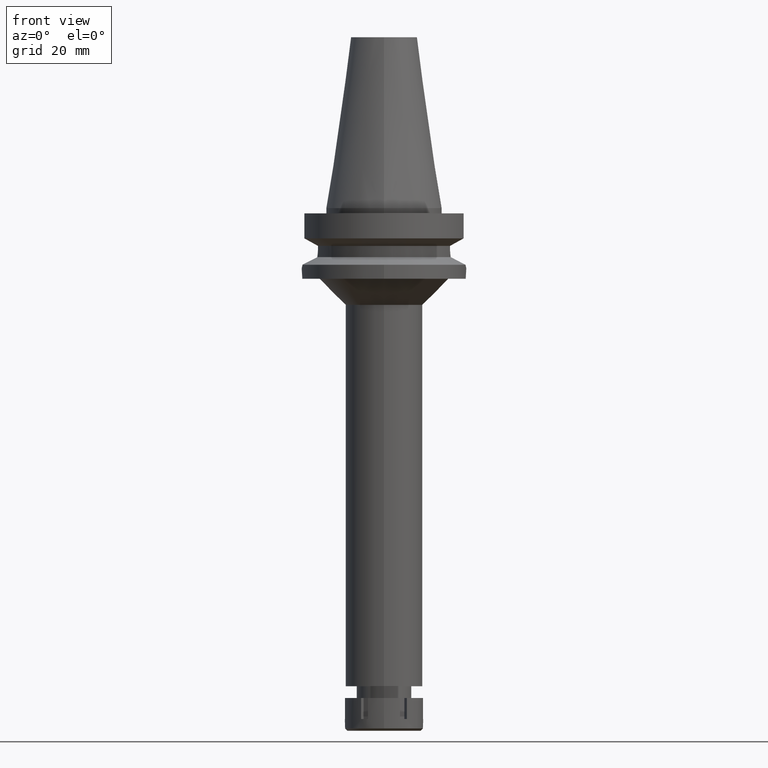
[diagram: clean part render]
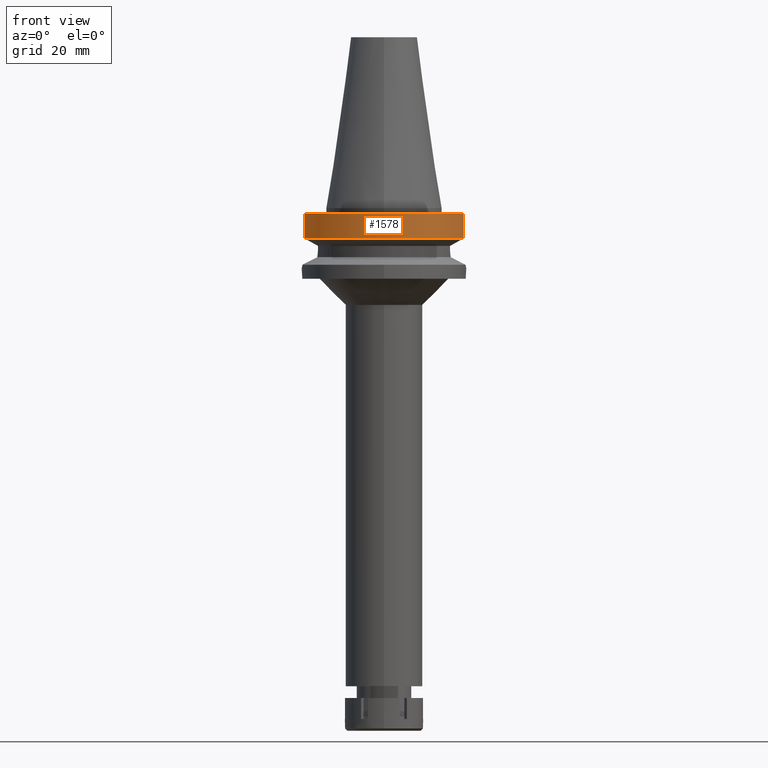
[diagram: same view with one face highlighted and labeled with its STEP entity id]
A machine part, front view. The second image highlights one B-rep face of the part: STEP entity #1578.
In plain terms, the highlighted cylindrical surface (partial cylindrical patch) has radius 31.5 mm, axis along (0, 0, -1).
Its self-contained STEP definition (entity closure, byte-faithful):
#2 = VECTOR ( 'NONE', #2903, 1000.000000000000227 ) ;
#103 = DIRECTION ( 'NONE',  ( 0.0000000000000000000, 0.0000000000000000000, -1.000000000000000000 ) ) ;
#122 = DIRECTION ( 'NONE',  ( 0.0000000000000000000, 0.0000000000000000000, 1.000000000000000000 ) ) ;
#154 = EDGE_CURVE ( 'NONE', #1198, #2717, #1292, .T. ) ;
#159 = EDGE_CURVE ( 'NONE', #1198, #1479, #2294, .T. ) ;
#213 = CYLINDRICAL_SURFACE ( 'NONE', #1302, 31.50000000000000000 ) ;
#471 = AXIS2_PLACEMENT_3D ( 'NONE', #2114, #103, #3231 ) ;
#721 = DIRECTION ( 'NONE',  ( 0.0000000000000000000, -1.000000000000000000, 0.0000000000000000000 ) ) ;
#731 = VECTOR ( 'NONE', #3516, 999.9999999999998863 ) ;
#732 = CARTESIAN_POINT ( 'NONE',  ( 30.45402272279000044, -8.050000000000000711, -2.000000000000000000 ) ) ;
#773 = ORIENTED_EDGE ( 'NONE', *, *, #159, .T. ) ;
#778 = EDGE_CURVE ( 'NONE', #1074, #1479, #2192, .T. ) ;
#964 = CARTESIAN_POINT ( 'NONE',  ( -30.45402291358000113, -8.049999278195999253, -11.56551215380000031 ) ) ;
#1074 = VERTEX_POINT ( 'NONE', #732 ) ;
#1198 = VERTEX_POINT ( 'NONE', #2532 ) ;
#1292 = LINE ( 'NONE', #964, #2 ) ;
#1302 = AXIS2_PLACEMENT_3D ( 'NONE', #1391, #3596, #3063 ) ;
#1391 = CARTESIAN_POINT ( 'NONE',  ( 0.0000000000000000000, 2.183790172239999946E-14, 78.32000000000000739 ) ) ;
#1422 = AXIS2_PLACEMENT_3D ( 'NONE', #2364, #122, #721 ) ;
#1437 = EDGE_CURVE ( 'NONE', #1074, #2717, #2512, .T. ) ;
#1479 = VERTEX_POINT ( 'NONE', #1874 ) ;
#1514 = ORIENTED_EDGE ( 'NONE', *, *, #1437, .T. ) ;
#1578 = ADVANCED_FACE ( 'NONE', ( #3581 ), #213, .T. ) ;
#1621 = ORIENTED_EDGE ( 'NONE', *, *, #778, .F. ) ;
#1732 = CARTESIAN_POINT ( 'NONE',  ( -30.45402272279000044, -8.050000000000000711, -2.000000000000000000 ) ) ;
#1874 = CARTESIAN_POINT ( 'NONE',  ( 30.45402272279000044, -8.049999999999000622, -11.56550565266999975 ) ) ;
#2114 = CARTESIAN_POINT ( 'NONE',  ( 0.0000000000000000000, 2.183790172239999946E-14, -2.000000000000000000 ) ) ;
#2192 = LINE ( 'NONE', #3311, #731 ) ;
#2287 = ORIENTED_EDGE ( 'NONE', *, *, #154, .F. ) ;
#2294 = CIRCLE ( 'NONE', #1422, 31.50000000000000000 ) ;
#2364 = CARTESIAN_POINT ( 'NONE',  ( 0.0000000000000000000, 1.065333950388000029E-14, -11.56550565266999975 ) ) ;
#2512 = CIRCLE ( 'NONE', #471, 31.50000000000000000 ) ;
#2532 = CARTESIAN_POINT ( 'NONE',  ( -30.45402291358000113, -8.049999278195999253, -11.56551215380000031 ) ) ;
#2545 = EDGE_LOOP ( 'NONE', ( #2287, #773, #1621, #1514 ) ) ;
#2717 = VERTEX_POINT ( 'NONE', #1732 ) ;
#2903 = DIRECTION ( 'NONE',  ( 1.994621289529988906E-08, -7.545894673464957228E-08, 0.9999999999999968914 ) ) ;
#3063 = DIRECTION ( 'NONE',  ( 0.0000000000000000000, -1.000000000000000000, 0.0000000000000000000 ) ) ;
#3231 = DIRECTION ( 'NONE',  ( 0.0000000000000000000, -1.000000000000000000, 0.0000000000000000000 ) ) ;
#3311 = CARTESIAN_POINT ( 'NONE',  ( 30.45402272279000044, -8.050000000000000711, -2.000000000000000000 ) ) ;
#3516 = DIRECTION ( 'NONE',  ( -1.145023312779999569E-07, -4.331741411846998158E-07, -0.9999999999998997469 ) ) ;
#3581 = FACE_OUTER_BOUND ( 'NONE', #2545, .T. ) ;
#3596 = DIRECTION ( 'NONE',  ( 0.0000000000000000000, 0.0000000000000000000, -1.000000000000000000 ) ) ;